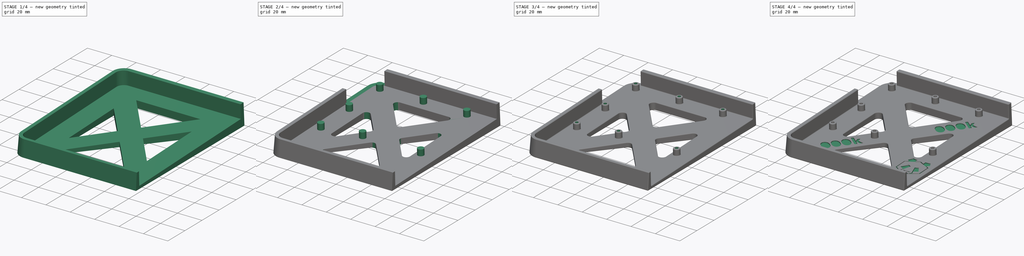
[diagram: build sequence overview — one tinted view per stage of 4, left to right]
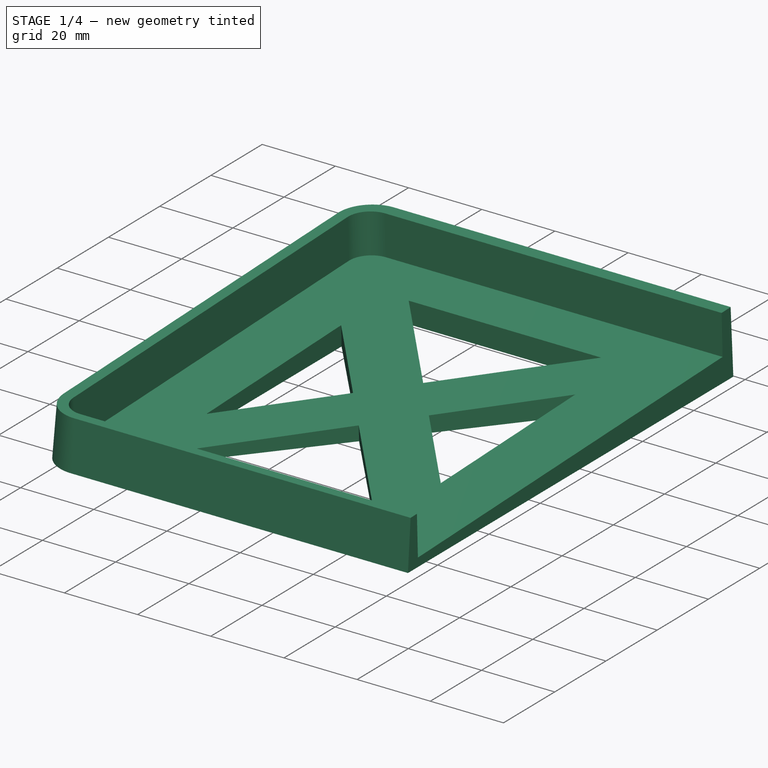
[diagram: stage 1 of 4 — iso view after this stage's code; geometry added in this stage tinted green]
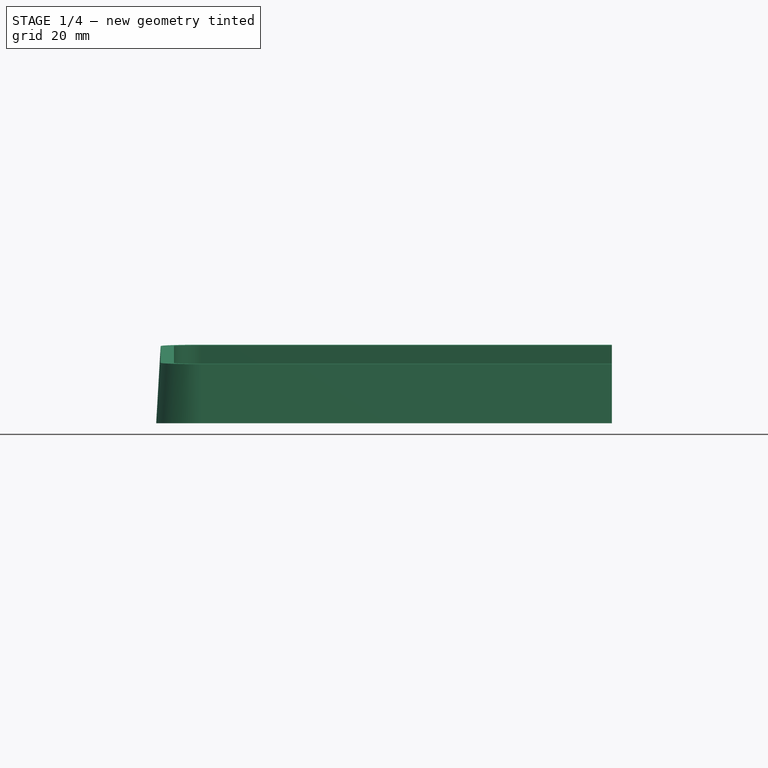
[diagram: stage 1 of 4 — front view after this stage's code; geometry added in this stage tinted green]
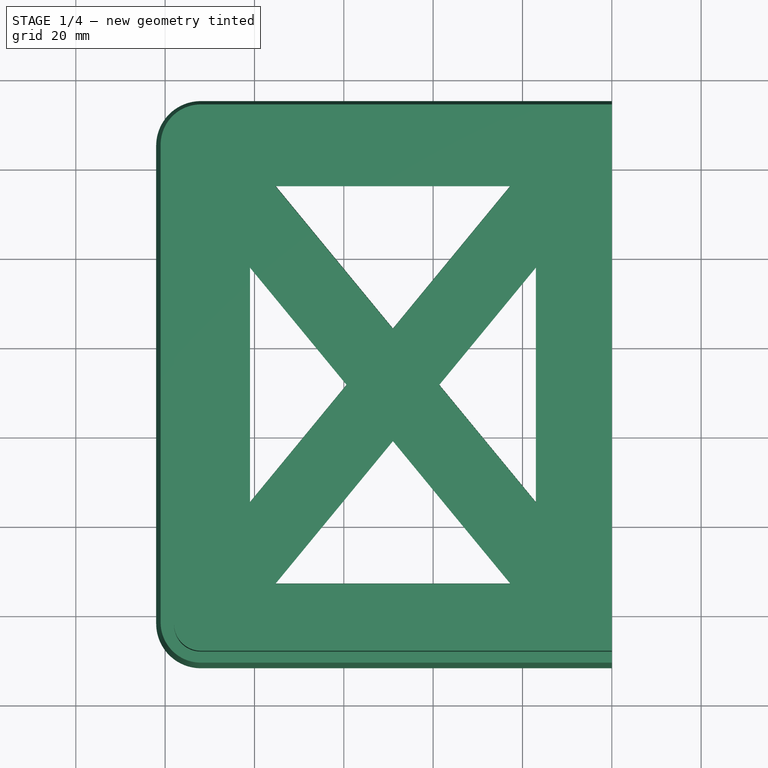
[diagram: stage 1 of 4 — top view after this stage's code; geometry added in this stage tinted green]
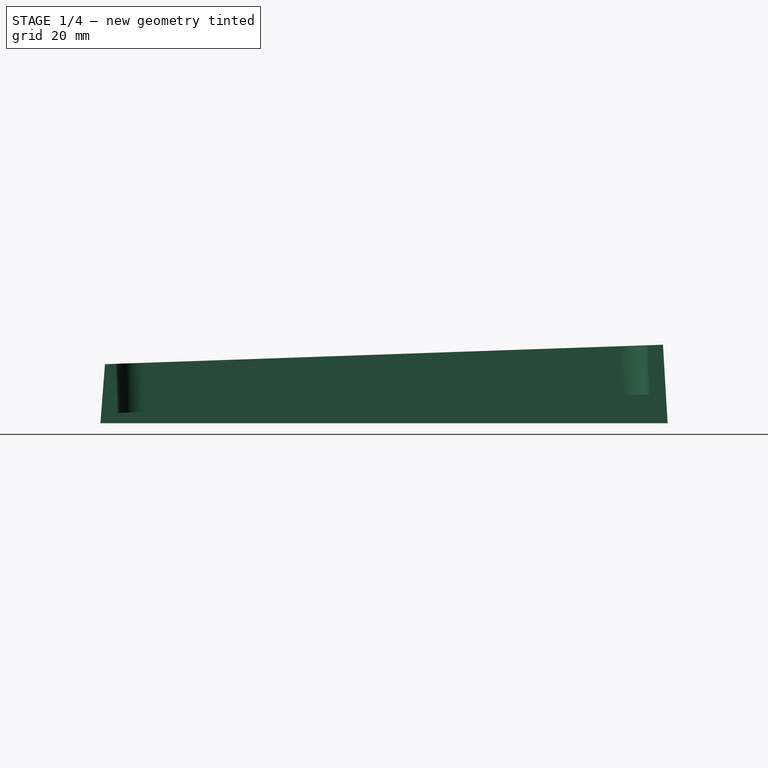
[diagram: stage 1 of 4 — right view after this stage's code; geometry added in this stage tinted green]
FCSTD DOCUMENT  (FreeCAD 0.20R)
Label: case.2.1
License: All rights reserved
LicenseURL: http://en.wikipedia.org/wiki/All_rights_reserved
objects: Sketcher::SketchObject×9, PartDesign::Pocket×5, PartDesign::Fillet×2, PartDesign::AdditiveLoft×1, PartDesign::Pad×1, PartDesign::Hole×1, PartDesign::Chamfer×1, PartDesign::Body×1
note: 32 computed .brp shape members not serialized (recipe doc carries the construction recipe); baked Part::Feature solids carry a one-line shape summary decoded from their .brp

FEATURE [Sketcher::SketchObject] Sketch  label="ext3"
  FullyConstrained = false
  MapMode = 5
  Support = -> [XY_Plane]
  sketch-geometry (6):
    g0: ArcOfCircle CenterX=-92.0124 CenterY=65.4064 CenterZ=0 NormalX=0 NormalY=0 NormalZ=1 AngleXU=0 Radius=10 StartAngle=1.5708 EndAngle=3.14159
    g1: LineSegment StartX=-102.012 StartY=-41.5936 StartZ=0 EndX=-102.012 EndY=65.4064 EndZ=0
    g2: ArcOfCircle CenterX=-92.0124 CenterY=-41.5936 CenterZ=0 NormalX=0 NormalY=0 NormalZ=1 AngleXU=0 Radius=10 StartAngle=3.14159 EndAngle=4.71239
    g3: LineSegment StartX=0 StartY=75.4064 StartZ=0 EndX=0 EndY=-51.5936 EndZ=0
    g4: LineSegment StartX=-92.0124 StartY=75.4064 StartZ=0 EndX=0 EndY=75.4064 EndZ=0
    g5: LineSegment StartX=-92.0124 StartY=-51.5936 StartZ=0 EndX=0 EndY=-51.5936 EndZ=0
  constraints (1):
    c: Coincident(g4,g3)
FEATURE [Sketcher::SketchObject] Sketch001  label="ext2"
  AttachmentOffset = pos=(0,0,15) rot=(1,0,0;0.034907rad)
  FullyConstrained = false
  MapMode = 5
  Placement = pos=(0,0,15) rot=(1,0,0;0.034907rad)
  Support = -> [XY_Plane]
  sketch-geometry (6):
    g0: ArcOfCircle CenterX=-92.0124 CenterY=-41.5936 CenterZ=0 NormalX=0 NormalY=0 NormalZ=1 AngleXU=0 Radius=9 StartAngle=3.14159 EndAngle=4.71239
    g1: LineSegment StartX=-101.012 StartY=-41.5936 StartZ=0 EndX=-101.012 EndY=65.4064 EndZ=0
    g2: ArcOfCircle CenterX=-92.0124 CenterY=65.4064 CenterZ=0 NormalX=0 NormalY=0 NormalZ=1 AngleXU=0 Radius=9 StartAngle=1.5708 EndAngle=3.14159
    g3: LineSegment StartX=-92.0124 StartY=-50.5936 StartZ=0 EndX=0 EndY=-50.5936 EndZ=0
    g4: LineSegment StartX=-92.0124 StartY=74.4064 StartZ=0 EndX=0 EndY=74.4063 EndZ=0
    g5: LineSegment StartX=0 StartY=74.4063 StartZ=0 EndX=0 EndY=-50.5936 EndZ=0
  constraints (1):
    c: Coincident(g5,g4)
FEATURE [PartDesign::AdditiveLoft] AdditiveLoft
  Closed = true
  Profile = -> Sketch
  Ruled = true
  Sections = -> [Sketch001]
FEATURE [Sketcher::SketchObject] Sketch002  label="ext1"
  FullyConstrained = false
  MapMode = 5
  Placement = pos=(0,-0.523174,14.9817) rot=(1,0,0;0.034907rad)
  Support = -> [AdditiveLoft]
  sketch-geometry (6):
    g0: ArcOfCircle CenterX=-92.0124 CenterY=65.4064 CenterZ=0 NormalX=0 NormalY=0 NormalZ=1 AngleXU=0 Radius=6 StartAngle=1.5708 EndAngle=3.14159
    g1: LineSegment StartX=-98.0124 StartY=-41.5936 StartZ=0 EndX=-98.0124 EndY=65.4064 EndZ=0
    g2: ArcOfCircle CenterX=-92.0124 CenterY=-41.5936 CenterZ=0 NormalX=0 NormalY=0 NormalZ=1 AngleXU=0 Radius=6 StartAngle=3.14159 EndAngle=4.71239
    g3: LineSegment StartX=-92.0124 StartY=71.4064 StartZ=0 EndX=0 EndY=71.4064 EndZ=0
    g4: LineSegment StartX=-92.0124 StartY=-47.5936 StartZ=0 EndX=0 EndY=-47.5936 EndZ=0
    g5: LineSegment StartX=0 StartY=71.4064 StartZ=0 EndX=0 EndY=-47.5936 EndZ=0
FEATURE [PartDesign::Pocket] Pocket
  BaseFeature = -> AdditiveLoft
  Direction = (0,0.0348995,-0.999391)
  Length = 11
  Length2 = 5
  Profile = -> Sketch002
  ReferenceAxis = -> Sketch002 [N_Axis]
  Type = 0
FEATURE [Sketcher::SketchObject] Sketch004
  ExternalGeometry = -> [Pocket]
  FullyConstrained = true
  MapMode = 5
  Placement = pos=(0,-0.139279,3.98843) rot=(1,0,0;0.034907rad)
  Support = -> [Pocket]
  sketch-geometry (17):
    g0: GeomPoint X=-98.0124 Y=71.4064 Z=0
    g1: GeomPoint X=-98.0124 Y=-47.5936 Z=0
    g2: LineSegment StartX=-98.0124 StartY=-47.5936 StartZ=0 EndX=1.42e-14 EndY=71.4064 EndZ=0
    g3: LineSegment StartX=-98.0124 StartY=71.4064 StartZ=0 EndX=1.42e-14 EndY=-47.5936 EndZ=0
    g4: LineSegment StartX=-75.2938 StartY=56.4063 StartZ=0 EndX=-49.0062 EndY=24.4898 EndZ=0
    g5: LineSegment StartX=-49.0062 StartY=24.4898 StartZ=0 EndX=-22.7187 EndY=56.4064 EndZ=0
    g6: LineSegment StartX=-22.7187 StartY=56.4064 StartZ=0 EndX=-75.2938 EndY=56.4063 EndZ=0
    g7: LineSegment StartX=-22.7187 StartY=-32.5936 StartZ=0 EndX=-49.0062 EndY=-0.677106 EndZ=0
    g8: LineSegment StartX=-49.0062 StartY=-0.677106 StartZ=0 EndX=-75.2938 EndY=-32.5936 EndZ=0
    g9: LineSegment StartX=-75.2938 StartY=-32.5936 StartZ=0 EndX=-22.7187 EndY=-32.5936 EndZ=0
    g10: GeomPoint X=-49.0062 Y=11.9063 Z=0
    g11: LineSegment StartX=-81.0124 StartY=38.1827 StartZ=0 EndX=-59.3704 EndY=11.9063 EndZ=0
    g12: LineSegment StartX=-59.3704 StartY=11.9063 StartZ=0 EndX=-81.0124 EndY=-14.37 EndZ=0
    g13: LineSegment StartX=-81.0124 StartY=-14.37 StartZ=0 EndX=-81.0124 EndY=38.1827 EndZ=0
    g14: LineSegment StartX=-38.6421 StartY=11.9063 StartZ=0 EndX=-17 EndY=-14.37 EndZ=0
    g15: LineSegment StartX=-17 StartY=-14.37 StartZ=0 EndX=-17 EndY=38.1827 EndZ=0
    g16: LineSegment StartX=-17 StartY=38.1827 StartZ=0 EndX=-38.6421 EndY=11.9063 EndZ=0
  constraints (40):
    c: Coincident(g2,g1)
    c: Coincident(g3,g0)
    c: Parallel(g4,g3)
    c: Parallel(g5,g2)
    c: Distance(g5,g2) = 8
    c: Distance(g4,g3) = 8
    c: Coincident(g6,g4)
    c: Coincident(g4,g5)
    c: Coincident(g6,g5)
    c: Coincident(g7,g8)
    c: Coincident(g8,g9)
    c: Coincident(g9,g7)
    c: PointOnObject(g10,g2)
    c: PointOnObject(g10,g3)
    c: Symmetric(g4,g7,g10)
    c: Symmetric(g8,g5,g10)
    c: Symmetric(g7,g4,g10)
    c: Coincident(g11,g12)
    c: Coincident(g12,g13)
    c: Coincident(g13,g11)
    c: Distance(g11,g3) = 8
    c: Horizontal(g10,g11)
    c: Coincident(g2,g-3)
    c: Vertical(g0,g-5)
    c: Horizontal(g0,g-3)
    c: Horizontal(g1,g-4)
    c: Vertical(g1,g-5)
    c: Coincident(g3,g-4)
    c: Distance(g7,g-4) = 15
    c: Distance(g11,g-5) = 17
    c: Distance(g12,g2) = 8
    c: Coincident(g14,g15)
    c: Coincident(g15,g16)
    c: Coincident(g16,g14)
    c: Symmetric(g11,g14,g10)
    c: Symmetric(g14,g11,g10)
    c: Symmetric(g15,g12,g10)
    c: Vertical(g13)
    c: Horizontal(g9)
    c: Parallel(g11,g3)
FEATURE [PartDesign::Pocket] Pocket001
  BaseFeature = -> Pocket
  Direction = (0,0.0348995,-0.999391)
  Length = 5
  Length2 = 5
  Profile = -> Sketch004
  ReferenceAxis = -> Sketch004 [N_Axis]
  Type = 1
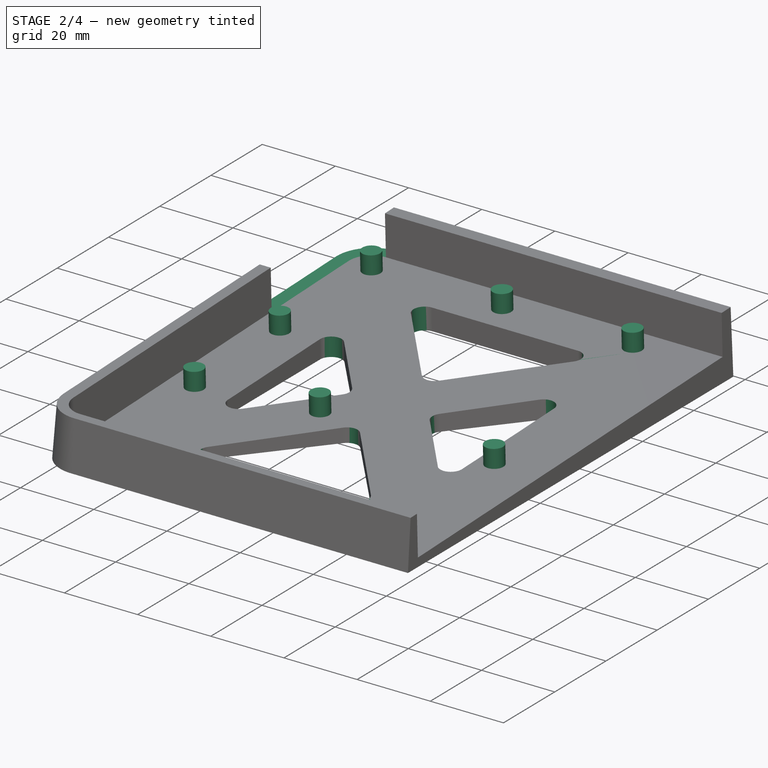
[diagram: stage 2 of 4 — iso view after this stage's code; geometry added in this stage tinted green]
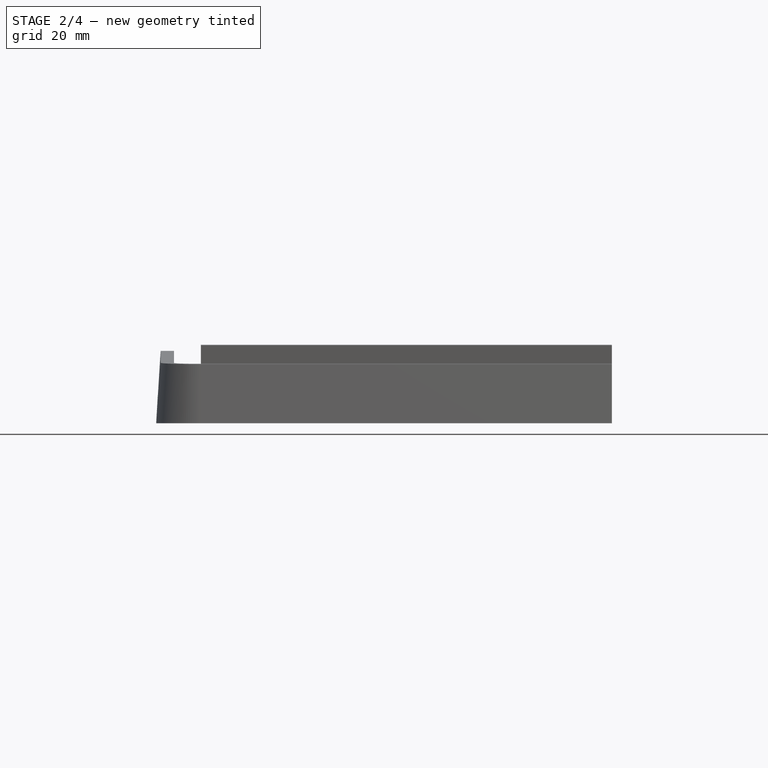
[diagram: stage 2 of 4 — front view after this stage's code; geometry added in this stage tinted green]
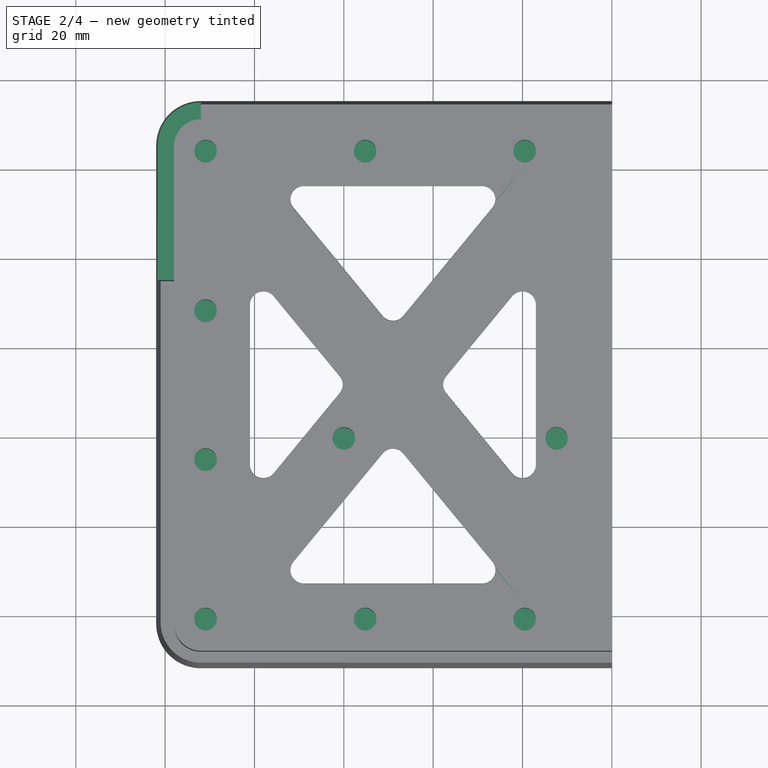
[diagram: stage 2 of 4 — top view after this stage's code; geometry added in this stage tinted green]
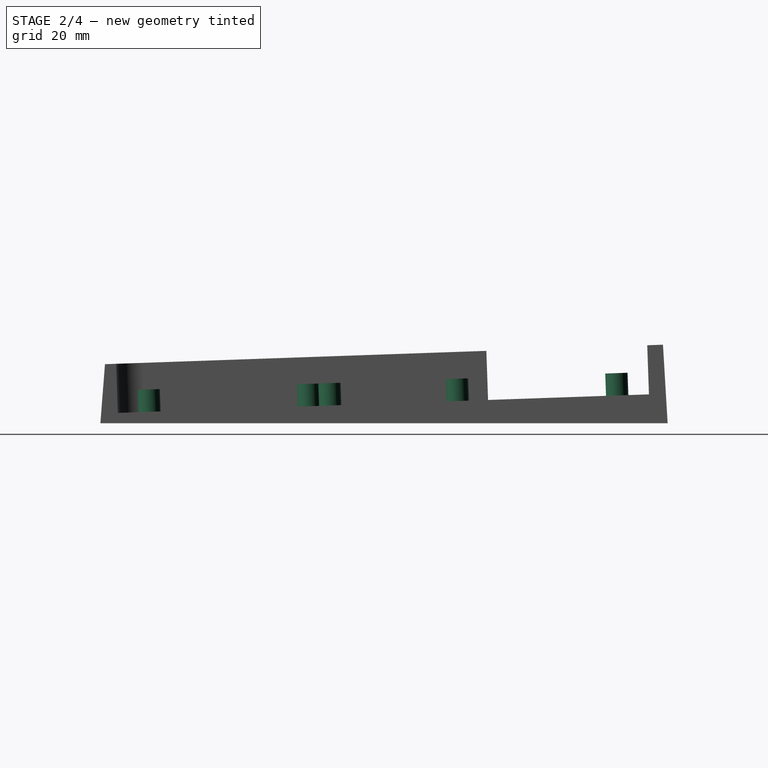
[diagram: stage 2 of 4 — right view after this stage's code; geometry added in this stage tinted green]
FEATURE [PartDesign::Fillet] Fillet
  Base = -> Pocket001 [Edge43,Edge42,Edge55,Edge57,Edge54,Edge45,Edge51,Edge48,Edge37,Edge36,Edge49,Edge39]
  BaseFeature = -> Pocket001
  Radius = 3
  SupportTransform = false
  UseAllEdges = false
FEATURE [Sketcher::SketchObject] Sketch005
  ExternalGeometry = -> [Fillet]
  FullyConstrained = true
  MapMode = 5
  Placement = pos=(0,-0.523174,14.9817) rot=(1,0,0;0.034907rad)
  Support = -> [Fillet]
  sketch-geometry (4):
    g0: LineSegment StartX=-92.0125 StartY=75.3604 StartZ=0 EndX=-102.012 EndY=75.3604 EndZ=0
    g1: LineSegment StartX=-102.012 StartY=75.3604 StartZ=0 EndX=-102.012 EndY=35.3665 EndZ=0
    g2: LineSegment StartX=-102.012 StartY=35.3665 StartZ=0 EndX=-92.0125 EndY=35.3665 EndZ=0
    g3: LineSegment StartX=-92.0125 StartY=35.3665 StartZ=0 EndX=-92.0125 EndY=75.3604 EndZ=0
  constraints (11):
    c: Coincident(g0,g1)
    c: Coincident(g1,g2)
    c: Coincident(g2,g3)
    c: Coincident(g3,g0)
    c: Horizontal(g0)
    c: Horizontal(g2)
    c: Vertical(g1)
    c: Vertical(g3)
    c: Coincident(g0,g-3)
    c: PointOnObject(g1,g-4)
    c: DistanceY(g1,g-4) = 30
FEATURE [PartDesign::Pocket] Pocket002
  BaseFeature = -> Fillet
  Direction = (0,0.0348995,-0.999391)
  Length = 0
  Length2 = 5
  Profile = -> Sketch005
  ReferenceAxis = -> Sketch005 [N_Axis]
  Type = 3
  UpToFace = -> Fillet [Face32]
FEATURE [Sketcher::SketchObject] Sketch003  label="support"
  FullyConstrained = false
  MapMode = 5
  Placement = pos=(0,-0.139279,3.98843) rot=(1,0,0;0.034907rad)
  Support = -> [Pocket002]
  sketch-geometry (10):
    g0: Circle CenterX=-90.9563 CenterY=64.2939 CenterZ=0 NormalX=0 NormalY=0 NormalZ=-1 AngleXU=0 Radius=2.5
    g1: Circle CenterX=-55.2375 CenterY=64.2939 CenterZ=0 NormalX=0 NormalY=0 NormalZ=-1 AngleXU=0 Radius=2.5
    g2: Circle CenterX=-19.5187 CenterY=64.2939 CenterZ=0 NormalX=0 NormalY=0 NormalZ=-1 AngleXU=0 Radius=2.5
    g3: Circle CenterX=-12.375 CenterY=0 CenterZ=0 NormalX=0 NormalY=0 NormalZ=-1 AngleXU=0 Radius=2.5
    g4: Circle CenterX=-19.5187 CenterY=-40.4812 CenterZ=0 NormalX=0 NormalY=0 NormalZ=-1 AngleXU=0 Radius=2.5
    g5: Circle CenterX=-55.2375 CenterY=-40.4812 CenterZ=0 NormalX=0 NormalY=0 NormalZ=-1 AngleXU=0 Radius=2.5
    g6: Circle CenterX=-90.9563 CenterY=-40.4812 CenterZ=0 NormalX=0 NormalY=0 NormalZ=-1 AngleXU=0 Radius=2.5
    g7: Circle CenterX=-90.9563 CenterY=-4.7624 CenterZ=0 NormalX=0 NormalY=0 NormalZ=-1 AngleXU=0 Radius=2.5
    g8: Circle CenterX=-90.9563 CenterY=28.5751 CenterZ=0 NormalX=0 NormalY=0 NormalZ=-1 AngleXU=0 Radius=2.5
    g9: Circle CenterX=-60 CenterY=0 CenterZ=0 NormalX=0 NormalY=0 NormalZ=-1 AngleXU=0 Radius=2.5
FEATURE [PartDesign::Pad] Pad
  BaseFeature = -> Pocket002
  Direction = (0,-0.0348995,0.999391)
  Length = 5
  Length2 = 10
  Profile = -> Sketch003
  ReferenceAxis = -> Sketch003 [N_Axis]
  Type = 0
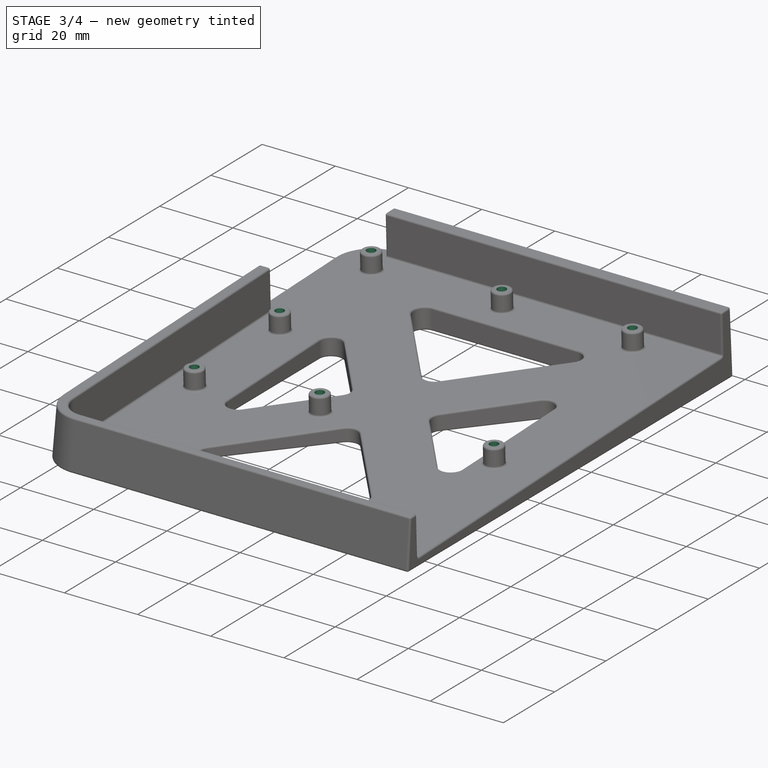
[diagram: stage 3 of 4 — iso view after this stage's code; geometry added in this stage tinted green]
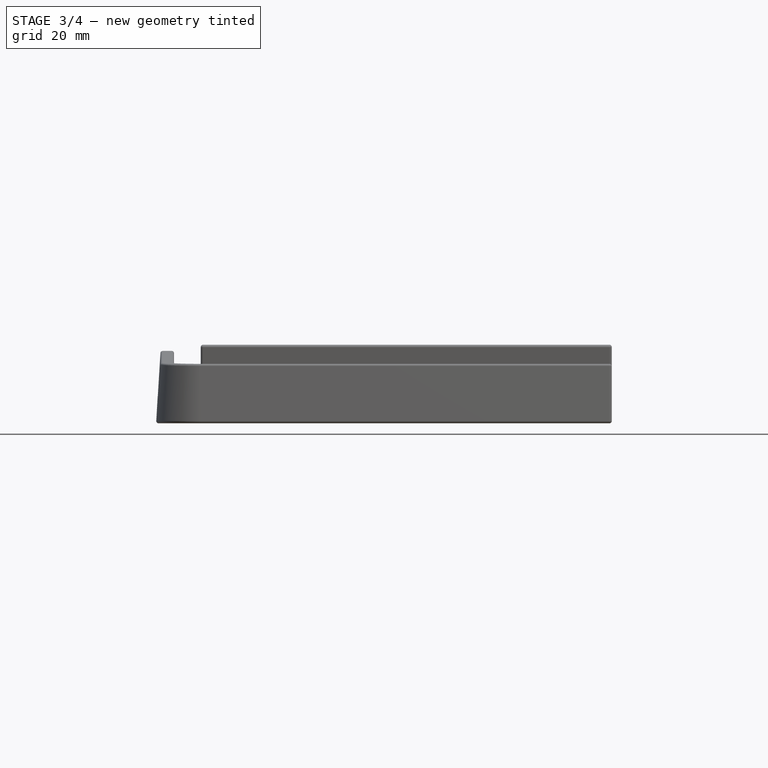
[diagram: stage 3 of 4 — front view after this stage's code; geometry added in this stage tinted green]
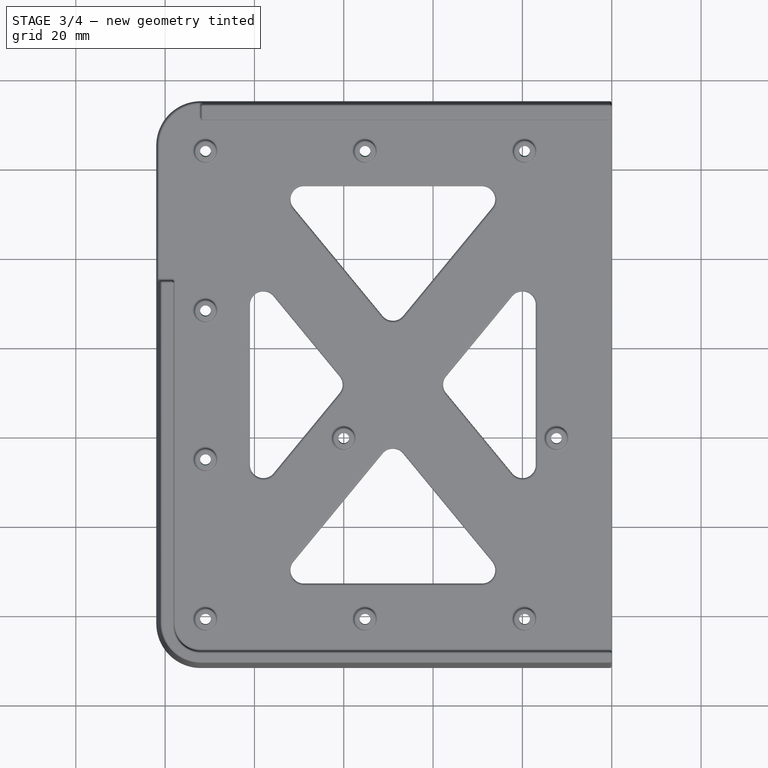
[diagram: stage 3 of 4 — top view after this stage's code; geometry added in this stage tinted green]
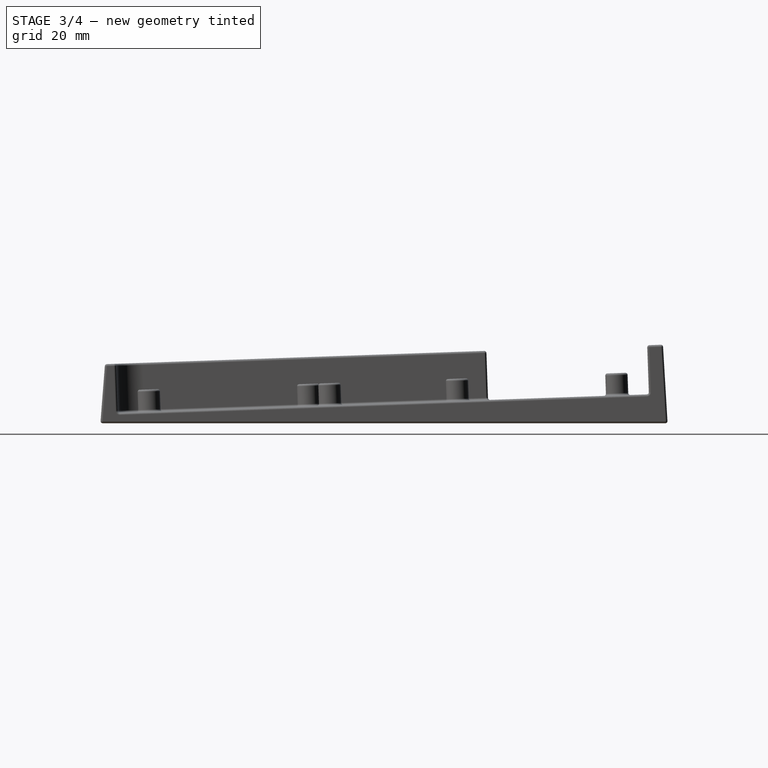
[diagram: stage 3 of 4 — right view after this stage's code; geometry added in this stage tinted green]
FEATURE [PartDesign::Fillet] Fillet001
  Base = -> Pad [Edge1,Edge2,Edge3,Edge4,Edge5,Edge6,Edge7,Edge8,Edge9,Edge10,Edge11,Edge12,Edge13,Edge14,Edge15,Edge16,Edge17,Edge18,Edge19,Edge20,Edge21,Edge22,Edge23,Edge24,Edge25,Edge26,Edge27,Edge28,Edge29,Edge30,Edge31,Edge32,Edge33,Edge34,Edge35,Edge36,Edge37,Edge38,Edge39,Edge40,+110 more]
  BaseFeature = -> Pad
  Radius = 0.5
  SupportTransform = false
  UseAllEdges = true
FEATURE [Sketcher::SketchObject] Sketch006
  ExternalGeometry = -> [Fillet001]
  FullyConstrained = true
  MapMode = 5
  Placement = pos=(2e-16,-0.313777,8.98539) rot=(1,0,0;0.034907rad)
  Support = -> [Fillet001]
  sketch-geometry (20):
    g0: GeomPoint X=-90.9563 Y=64.2939 Z=0
    g1: GeomPoint X=-55.2375 Y=64.2939 Z=0
    g2: GeomPoint X=-19.5187 Y=64.2939 Z=0
    g3: GeomPoint X=-12.375 Y=-4e-16 Z=0
    g4: GeomPoint X=-60 Y=-4e-16 Z=0
    g5: GeomPoint X=-90.9563 Y=28.5751 Z=0
    g6: GeomPoint X=-90.9563 Y=-4.7624 Z=0
    g7: GeomPoint X=-90.9563 Y=-40.4812 Z=0
    g8: GeomPoint X=-55.2375 Y=-40.4812 Z=0
    g9: GeomPoint X=-19.5187 Y=-40.4812 Z=0
    g10: Circle CenterX=-90.9563 CenterY=64.2939 CenterZ=0 NormalX=0 NormalY=0 NormalZ=1 AngleXU=0 Radius=1
    g11: Circle CenterX=-55.2375 CenterY=64.2939 CenterZ=0 NormalX=0 NormalY=0 NormalZ=1 AngleXU=0 Radius=1
    g12: Circle CenterX=-19.5187 CenterY=64.2939 CenterZ=0 NormalX=0 NormalY=0 NormalZ=1 AngleXU=0 Radius=1
    g13: Circle CenterX=-12.375 CenterY=-4e-16 CenterZ=0 NormalX=0 NormalY=0 NormalZ=1 AngleXU=0 Radius=1
    g14: Circle CenterX=-60 CenterY=-4e-16 CenterZ=0 NormalX=0 NormalY=0 NormalZ=1 AngleXU=0 Radius=1
    g15: Circle CenterX=-90.9563 CenterY=-4.7624 CenterZ=0 NormalX=0 NormalY=0 NormalZ=1 AngleXU=0 Radius=1
    g16: Circle CenterX=-90.9563 CenterY=28.5751 CenterZ=0 NormalX=0 NormalY=0 NormalZ=1 AngleXU=0 Radius=1
    g17: Circle CenterX=-90.9563 CenterY=-40.4812 CenterZ=0 NormalX=0 NormalY=0 NormalZ=1 AngleXU=0 Radius=1
    g18: Circle CenterX=-55.2375 CenterY=-40.4812 CenterZ=0 NormalX=0 NormalY=0 NormalZ=1 AngleXU=0 Radius=1
    g19: Circle CenterX=-19.5187 CenterY=-40.4812 CenterZ=0 NormalX=0 NormalY=0 NormalZ=1 AngleXU=0 Radius=1
  constraints (30):
    c: Coincident(g0,g-11)
    c: Coincident(g1,g-12)
    c: Coincident(g2,g-3)
    c: Coincident(g3,g-4)
    c: Coincident(g4,g-9)
    c: Coincident(g5,g-10)
    c: Coincident(g6,g-8)
    c: Coincident(g7,g-7)
    c: Coincident(g8,g-6)
    c: Coincident(g9,g-5)
    c: Coincident(g10,g0)
    c: Coincident(g11,g1)
    c: Coincident(g12,g2)
    c: Coincident(g13,g3)
    c: Coincident(g14,g4)
    c: Coincident(g15,g6)
    c: Coincident(g16,g5)
    c: Coincident(g17,g7)
    c: Coincident(g18,g8)
    c: Coincident(g19,g9)
    c: Equal(g19,g18)
    c: Equal(g18,g17)
    c: Equal(g17,g15)
    c: Equal(g15,g14)
    c: Equal(g14,g13)
    c: Equal(g13,g16)
    c: Equal(g16,g10)
    c: Equal(g10,g11)
    c: Equal(g11,g12)
    c: Diameter(g10) = 2
FEATURE [PartDesign::Hole] Hole
  BaseFeature = -> Fillet001
  CustomThreadClearance = 0
  Depth = 330.174
  DepthType = 1
  Diameter = 2.42
  DrillForDepth = false
  DrillPoint = 1
  DrillPointAngle = 118
  HoleCutCountersinkAngle = 90
  HoleCutCustomValues = false
  HoleCutDepth = 0
  HoleCutDiameter = 6.1
  HoleCutType = 0
  ModelThread = false
  Profile = -> Sketch006
  Tapered = false
  TaperedAngle = 90
  ThreadClass = 0
  ThreadDepth = 330.174
  ThreadDepthType = 0
  ThreadDirection = 0
  ThreadFit = 0
  ThreadSize = 7
  ThreadType = 1
  Threaded = false
  UseCustomThreadClearance = false
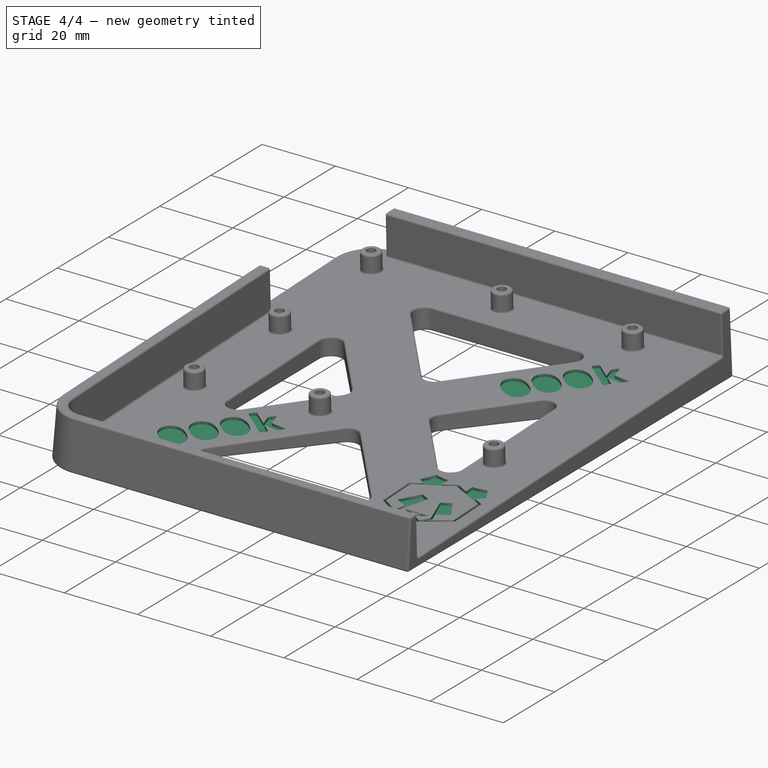
[diagram: stage 4 of 4 — iso view after this stage's code; geometry added in this stage tinted green]
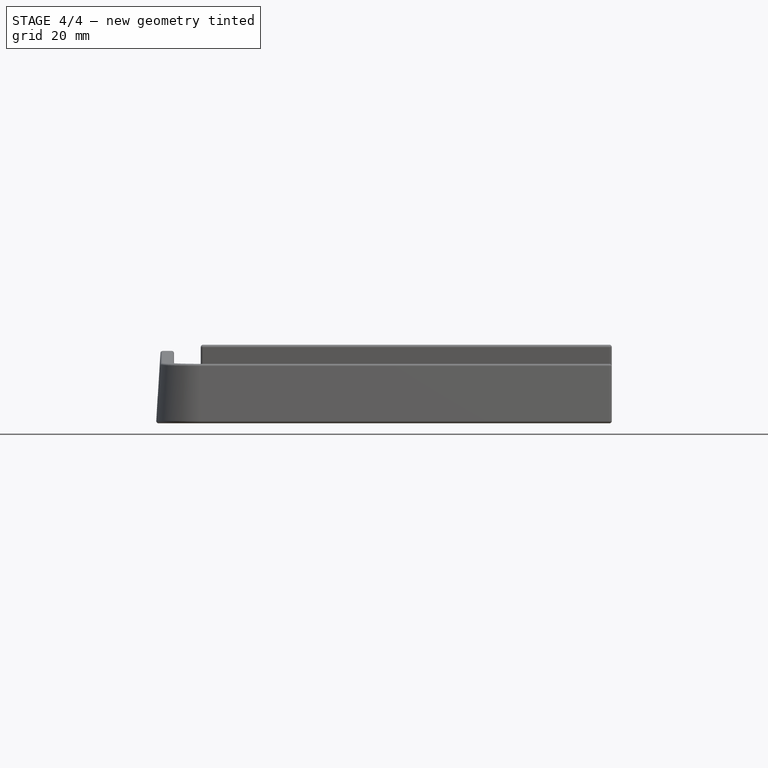
[diagram: stage 4 of 4 — front view after this stage's code; geometry added in this stage tinted green]
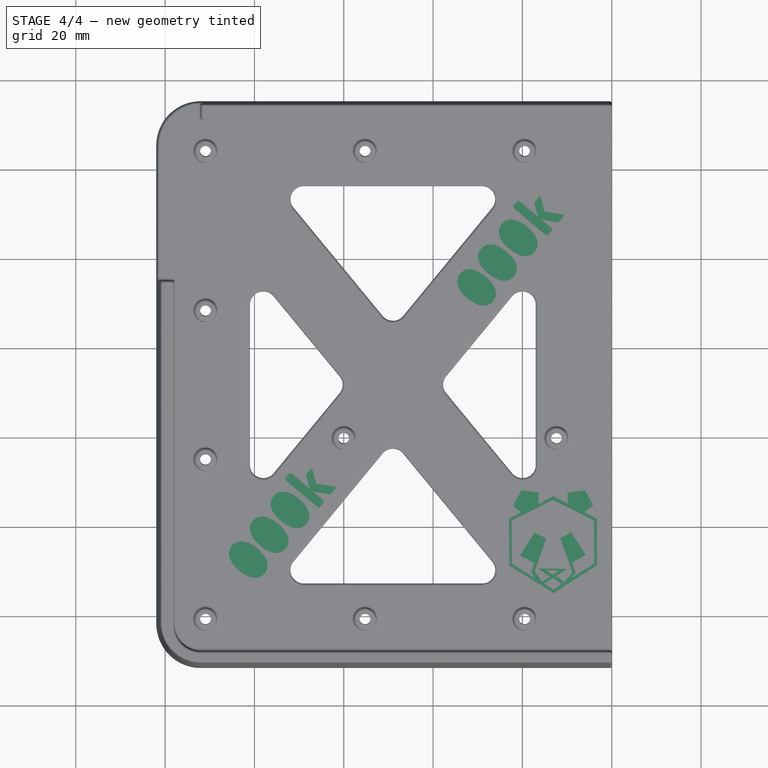
[diagram: stage 4 of 4 — top view after this stage's code; geometry added in this stage tinted green]
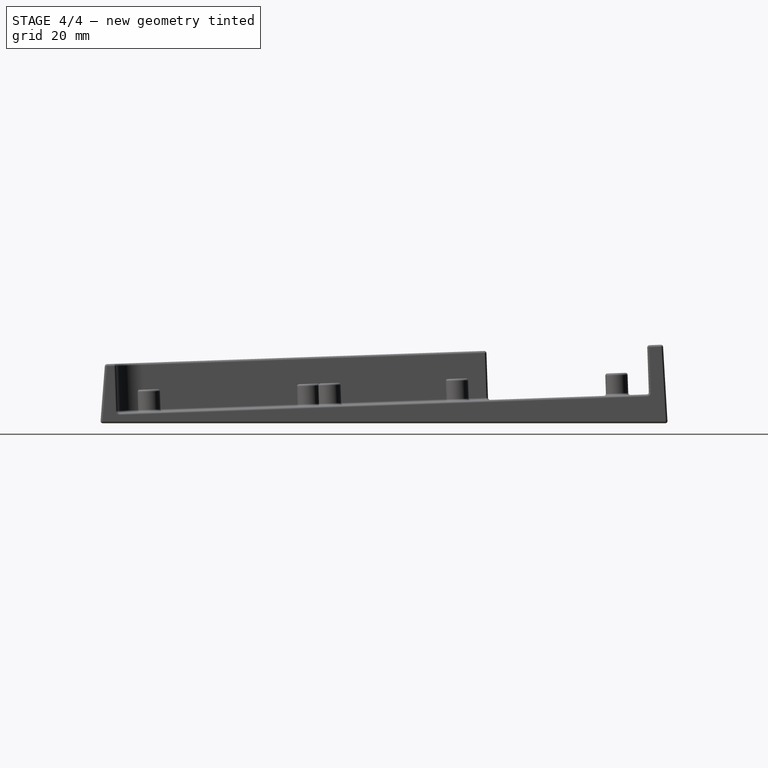
[diagram: stage 4 of 4 — right view after this stage's code; geometry added in this stage tinted green]
FEATURE [PartDesign::Chamfer] Chamfer
  Angle = 45
  Base = -> Hole [Edge8,Edge17,Edge18,Edge7,Edge10,Edge40,Edge27,Edge26,Edge19,Edge9]
  BaseFeature = -> Hole
  ChamferType = 0
  FlipDirection = false
  Size = 1.5
  Size2 = 1
  SupportTransform = false
  UseAllEdges = false
FEATURE [Sketcher::SketchObject] Sketch007
  AttachmentOffset = pos=(-80,-33,0) rot=(0,0,1;0.872665rad)
  FullyConstrained = false
  MapMode = 5
  Placement = pos=(-80,-33.1192,2.83675) rot=(0.037401,-0.01744,0.999148;0.873318rad)
  Support = -> [Chamfer]
  sketch-geometry (140):
    g0: BSplineCurve PolesCount=3 KnotsCount=2 Degree=2 IsPeriodic=0
    g1: BSplineCurve PolesCount=3 KnotsCount=2 Degree=2 IsPeriodic=0
    g2: BSplineCurve PolesCount=3 KnotsCount=2 Degree=2 IsPeriodic=0
    g3: BSplineCurve PolesCount=3 KnotsCount=2 Degree=2 IsPeriodic=0
    g4: BSplineCurve PolesCount=3 KnotsCount=2 Degree=2 IsPeriodic=0
    g5: BSplineCurve PolesCount=3 KnotsCount=2 Degree=2 IsPeriodic=0
    g6: BSplineCurve PolesCount=3 KnotsCount=2 Degree=2 IsPeriodic=0
    g7: BSplineCurve PolesCount=3 KnotsCount=2 Degree=2 IsPeriodic=0
    g8: BSplineCurve PolesCount=3 KnotsCount=2 Degree=2 IsPeriodic=0
    g9: BSplineCurve PolesCount=3 KnotsCount=2 Degree=2 IsPeriodic=0
    g10: BSplineCurve PolesCount=3 KnotsCount=2 Degree=2 IsPeriodic=0
    g11: BSplineCurve PolesCount=3 KnotsCount=2 Degree=2 IsPeriodic=0
    g12: BSplineCurve PolesCount=3 KnotsCount=2 Degree=2 IsPeriodic=0
    g13: BSplineCurve PolesCount=3 KnotsCount=2 Degree=2 IsPeriodic=0
    g14: BSplineCurve PolesCount=3 KnotsCount=2 Degree=2 IsPeriodic=0
    g15: BSplineCurve PolesCount=3 KnotsCount=2 Degree=2 IsPeriodic=0
    g16: BSplineCurve PolesCount=3 KnotsCount=2 Degree=2 IsPeriodic=0
    g17: BSplineCurve PolesCount=3 KnotsCount=2 Degree=2 IsPeriodic=0
    g18: BSplineCurve PolesCount=3 KnotsCount=2 Degree=2 IsPeriodic=0
    g19: BSplineCurve PolesCount=3 KnotsCount=2 Degree=2 IsPeriodic=0
    g20: BSplineCurve PolesCount=3 KnotsCount=2 Degree=2 IsPeriodic=0
    g21: BSplineCurve PolesCount=3 KnotsCount=2 Degree=2 IsPeriodic=0
    g22: BSplineCurve PolesCount=3 KnotsCount=2 Degree=2 IsPeriodic=0
    g23: BSplineCurve PolesCount=3 KnotsCount=2 Degree=2 IsPeriodic=0
    g24: BSplineCurve PolesCount=3 KnotsCount=2 Degree=2 IsPeriodic=0
    g25: BSplineCurve PolesCount=3 KnotsCount=2 Degree=2 IsPeriodic=0
    g26: BSplineCurve PolesCount=3 KnotsCount=2 Degree=2 IsPeriodic=0
    g27: BSplineCurve PolesCount=3 KnotsCount=2 Degree=2 IsPeriodic=0
    g28: BSplineCurve PolesCount=3 KnotsCount=2 Degree=2 IsPeriodic=0
    g29: BSplineCurve PolesCount=3 KnotsCount=2 Degree=2 IsPeriodic=0
    g30: BSplineCurve PolesCount=3 KnotsCount=2 Degree=2 IsPeriodic=0
    g31: BSplineCurve PolesCount=3 KnotsCount=2 Degree=2 IsPeriodic=0
    g32: BSplineCurve PolesCount=3 KnotsCount=2 Degree=2 IsPeriodic=0
    g33: BSplineCurve PolesCount=3 KnotsCount=2 Degree=2 IsPeriodic=0
    g34: BSplineCurve PolesCount=3 KnotsCount=2 Degree=2 IsPeriodic=0
    g35: BSplineCurve PolesCount=3 KnotsCount=2 Degree=2 IsPeriodic=0
    g36: LineSegment StartX=26.3858 StartY=4.0397 StartZ=0 EndX=28.4164 EndY=0.651435 EndZ=0
    g37: LineSegment StartX=28.1066 StartY=6.49349 StartZ=0 EndX=26.3858 EndY=4.0397 EndZ=0
    g38: BSplineCurve PolesCount=3 KnotsCount=2 Degree=2 IsPeriodic=0
    g39: BSplineCurve PolesCount=3 KnotsCount=2 Degree=2 IsPeriodic=0
    g40: BSplineCurve PolesCount=3 KnotsCount=2 Degree=2 IsPeriodic=0
    g41: BSplineCurve PolesCount=3 KnotsCount=2 Degree=2 IsPeriodic=0
    g42: LineSegment StartX=27.1686 StartY=7.13922 StartZ=0 EndX=27.5962 EndY=7.13922 EndZ=0
    g43: BSplineCurve PolesCount=3 KnotsCount=2 Degree=2 IsPeriodic=0
    g44: BSplineCurve PolesCount=3 KnotsCount=2 Degree=2 IsPeriodic=0
    g45: BSplineCurve PolesCount=3 KnotsCount=2 Degree=2 IsPeriodic=0
    g46: LineSegment StartX=24.6337 StartY=4.46906 StartZ=0 EndX=26.1913 EndY=6.82945 EndZ=0
    g47: LineSegment StartX=24.5682 StartY=4.46906 StartZ=0 EndX=24.6337 EndY=4.46906 EndZ=0
    g48: LineSegment StartX=24.5682 StartY=9.76575 StartZ=0 EndX=24.5682 EndY=4.46906 EndZ=0
    g49: BSplineCurve PolesCount=3 KnotsCount=2 Degree=2 IsPeriodic=0
    g50: BSplineCurve PolesCount=3 KnotsCount=2 Degree=2 IsPeriodic=0
    g51: LineSegment StartX=23.3771 StartY=10.2064 StartZ=0 EndX=23.7524 EndY=10.2064 EndZ=0
    g52: BSplineCurve PolesCount=3 KnotsCount=2 Degree=2 IsPeriodic=0
    g53: BSplineCurve PolesCount=3 KnotsCount=2 Degree=2 IsPeriodic=0
    g54: LineSegment StartX=22.5569 StartY=0.516182 StartZ=0 EndX=22.5569 EndY=9.76575 EndZ=0
    g55: BSplineCurve PolesCount=3 KnotsCount=2 Degree=2 IsPeriodic=0
    g56: BSplineCurve PolesCount=3 KnotsCount=2 Degree=2 IsPeriodic=0
    g57: LineSegment StartX=23.7524 StartY=0.075519 StartZ=0 EndX=23.3771 EndY=0.075519 EndZ=0
    g58: BSplineCurve PolesCount=3 KnotsCount=2 Degree=2 IsPeriodic=0
    g59: BSplineCurve PolesCount=3 KnotsCount=2 Degree=2 IsPeriodic=0
    g60: LineSegment StartX=24.5682 StartY=3.40013 StartZ=0 EndX=24.5682 EndY=0.516182 EndZ=0
    g61: LineSegment StartX=24.6337 StartY=3.40013 StartZ=0 EndX=24.5682 EndY=3.40013 EndZ=0
    g62: LineSegment StartX=26.296 StartY=0.503093 StartZ=0 EndX=24.6337 EndY=3.40013 EndZ=0
    g63: BSplineCurve PolesCount=3 KnotsCount=2 Degree=2 IsPeriodic=0
    g64: BSplineCurve PolesCount=3 KnotsCount=2 Degree=2 IsPeriodic=0
    g65: LineSegment StartX=27.823 StartY=0.075519 StartZ=0 EndX=27.3955 EndY=0.075519 EndZ=0
    g66: BSplineCurve PolesCount=3 KnotsCount=2 Degree=2 IsPeriodic=0
    g67: BSplineCurve PolesCount=3 KnotsCount=2 Degree=2 IsPeriodic=0
    g68: BSplineCurve PolesCount=3 KnotsCount=2 Degree=2 IsPeriodic=0
    g69: BSplineCurve PolesCount=3 KnotsCount=2 Degree=2 IsPeriodic=0
    g70: BSplineCurve PolesCount=3 KnotsCount=2 Degree=2 IsPeriodic=0
    g71: BSplineCurve PolesCount=3 KnotsCount=2 Degree=2 IsPeriodic=0
    g72: BSplineCurve PolesCount=3 KnotsCount=2 Degree=2 IsPeriodic=0
    g73: BSplineCurve PolesCount=3 KnotsCount=2 Degree=2 IsPeriodic=0
    g74: BSplineCurve PolesCount=3 KnotsCount=2 Degree=2 IsPeriodic=0
    g75: BSplineCurve PolesCount=3 KnotsCount=2 Degree=2 IsPeriodic=0
    g76: BSplineCurve PolesCount=3 KnotsCount=2 Degree=2 IsPeriodic=0
    g77: BSplineCurve PolesCount=3 KnotsCount=2 Degree=2 IsPeriodic=0
    g78: BSplineCurve PolesCount=3 KnotsCount=2 Degree=2 IsPeriodic=0
    g79: BSplineCurve PolesCount=3 KnotsCount=2 Degree=2 IsPeriodic=0
    g80: BSplineCurve PolesCount=3 KnotsCount=2 Degree=2 IsPeriodic=0
    g81: BSplineCurve PolesCount=3 KnotsCount=2 Degree=2 IsPeriodic=0
    g82: BSplineCurve PolesCount=3 KnotsCount=2 Degree=2 IsPeriodic=0
    g83: BSplineCurve PolesCount=3 KnotsCount=2 Degree=2 IsPeriodic=0
    g84: BSplineCurve PolesCount=3 KnotsCount=2 Degree=2 IsPeriodic=0
    g85: BSplineCurve PolesCount=3 KnotsCount=2 Degree=2 IsPeriodic=0
    g86: BSplineCurve PolesCount=3 KnotsCount=2 Degree=2 IsPeriodic=0
    g87: BSplineCurve PolesCount=3 KnotsCount=2 Degree=2 IsPeriodic=0
    g88: BSplineCurve PolesCount=3 KnotsCount=2 Degree=2 IsPeriodic=0
    g89: BSplineCurve PolesCount=3 KnotsCount=2 Degree=2 IsPeriodic=0
    g90: BSplineCurve PolesCount=3 KnotsCount=2 Degree=2 IsPeriodic=0
    g91: BSplineCurve PolesCount=3 KnotsCount=2 Degree=2 IsPeriodic=0
    g92: BSplineCurve PolesCount=3 KnotsCount=2 Degree=2 IsPeriodic=0
    g93: BSplineCurve PolesCount=3 KnotsCount=2 Degree=2 IsPeriodic=0
    g94: BSplineCurve PolesCount=3 KnotsCount=2 Degree=2 IsPeriodic=0
    g95: BSplineCurve PolesCount=3 KnotsCount=2 Degree=2 IsPeriodic=0
    g96: BSplineCurve PolesCount=3 KnotsCount=2 Degree=2 IsPeriodic=0
    g97: BSplineCurve PolesCount=3 KnotsCount=2 Degree=2 IsPeriodic=0
    g98: BSplineCurve PolesCount=3 KnotsCount=2 Degree=2 IsPeriodic=0
    g99: BSplineCurve PolesCount=3 KnotsCount=2 Degree=2 IsPeriodic=0
    g100: BSplineCurve PolesCount=3 KnotsCount=2 Degree=2 IsPeriodic=0
    g101: BSplineCurve PolesCount=3 KnotsCount=2 Degree=2 IsPeriodic=0
    g102: BSplineCurve PolesCount=3 KnotsCount=2 Degree=2 IsPeriodic=0
    g103: BSplineCurve PolesCount=3 KnotsCount=2 Degree=2 IsPeriodic=0
    g104: BSplineCurve PolesCount=3 KnotsCount=2 Degree=2 IsPeriodic=0
    g105: BSplineCurve PolesCount=3 KnotsCount=2 Degree=2 IsPeriodic=0
    g106: LineSegment StartX=105.909 StartY=4.05581 StartZ=0 EndX=107.94 EndY=0.667546 EndZ=0
    g107: LineSegment StartX=107.63 StartY=6.50961 StartZ=0 EndX=105.909 EndY=4.05581 EndZ=0
    g108: BSplineCurve PolesCount=3 KnotsCount=2 Degree=2 IsPeriodic=0
    g109: BSplineCurve PolesCount=3 KnotsCount=2 Degree=2 IsPeriodic=0
    g110: BSplineCurve PolesCount=3 KnotsCount=2 Degree=2 IsPeriodic=0
    g111: BSplineCurve PolesCount=3 KnotsCount=2 Degree=2 IsPeriodic=0
    g112: LineSegment StartX=106.692 StartY=7.15533 StartZ=0 EndX=107.119 EndY=7.15533 EndZ=0
    g113: BSplineCurve PolesCount=3 KnotsCount=2 Degree=2 IsPeriodic=0
    g114: BSplineCurve PolesCount=3 KnotsCount=2 Degree=2 IsPeriodic=0
    g115: BSplineCurve PolesCount=3 KnotsCount=2 Degree=2 IsPeriodic=0
    g116: LineSegment StartX=104.157 StartY=4.48517 StartZ=0 EndX=105.714 EndY=6.84556 EndZ=0
    g117: LineSegment StartX=104.091 StartY=4.48517 StartZ=0 EndX=104.157 EndY=4.48517 EndZ=0
    g118: LineSegment StartX=104.091 StartY=9.78186 StartZ=0 EndX=104.091 EndY=4.48517 EndZ=0
    g119: BSplineCurve PolesCount=3 KnotsCount=2 Degree=2 IsPeriodic=0
    g120: BSplineCurve PolesCount=3 KnotsCount=2 Degree=2 IsPeriodic=0
    g121: LineSegment StartX=102.9 StartY=10.2225 StartZ=0 EndX=103.275 EndY=10.2225 EndZ=0
    g122: BSplineCurve PolesCount=3 KnotsCount=2 Degree=2 IsPeriodic=0
    g123: BSplineCurve PolesCount=3 KnotsCount=2 Degree=2 IsPeriodic=0
    g124: LineSegment StartX=102.08 StartY=0.532293 StartZ=0 EndX=102.08 EndY=9.78186 EndZ=0
    g125: BSplineCurve PolesCount=3 KnotsCount=2 Degree=2 IsPeriodic=0
    g126: BSplineCurve PolesCount=3 KnotsCount=2 Degree=2 IsPeriodic=0
    g127: LineSegment StartX=103.275 StartY=0.09163 StartZ=0 EndX=102.9 EndY=0.09163 EndZ=0
    g128: BSplineCurve PolesCount=3 KnotsCount=2 Degree=2 IsPeriodic=0
    g129: BSplineCurve PolesCount=3 KnotsCount=2 Degree=2 IsPeriodic=0
    g130: LineSegment StartX=104.091 StartY=3.41624 StartZ=0 EndX=104.091 EndY=0.532293 EndZ=0
    g131: LineSegment StartX=104.157 StartY=3.41624 StartZ=0 EndX=104.091 EndY=3.41624 EndZ=0
    g132: LineSegment StartX=105.819 StartY=0.519204 StartZ=0 EndX=104.157 EndY=3.41624 EndZ=0
    g133: BSplineCurve PolesCount=3 KnotsCount=2 Degree=2 IsPeriodic=0
    g134: BSplineCurve PolesCount=3 KnotsCount=2 Degree=2 IsPeriodic=0
    g135: LineSegment StartX=107.346 StartY=0.09163 StartZ=0 EndX=106.919 EndY=0.09163 EndZ=0
    g136: BSplineCurve PolesCount=3 KnotsCount=2 Degree=2 IsPeriodic=0
    g137: BSplineCurve PolesCount=3 KnotsCount=2 Degree=2 IsPeriodic=0
    g138: BSplineCurve PolesCount=3 KnotsCount=2 Degree=2 IsPeriodic=0
    g139: BSplineCurve PolesCount=3 KnotsCount=2 Degree=2 IsPeriodic=0
  constraints (158):
    c: Coincident(g0,g1)
    c: Coincident(g1,g2)
    c: Coincident(g2,g3)
    c: Coincident(g3,g4)
    c: Coincident(g4,g5)
    c: Coincident(g5,g6)
    c: Coincident(g6,g7)
    c: Coincident(g7,g8)
    c: Coincident(g8,g9)
    c: Coincident(g9,g10)
    c: Coincident(g10,g11)
    c: Coincident(g11,g0)
    c: Coincident(g12,g13)
    c: Coincident(g13,g14)
    c: Coincident(g14,g15)
    c: Coincident(g15,g16)
    c: Coincident(g16,g17)
    c: Coincident(g17,g18)
    c: Coincident(g18,g19)
    c: Coincident(g19,g20)
    c: Coincident(g20,g21)
    c: Coincident(g21,g22)
    c: Coincident(g22,g23)
    c: Coincident(g23,g12)
    c: Coincident(g24,g25)
    c: Coincident(g25,g26)
    c: Coincident(g26,g27)
    c: Coincident(g27,g28)
    c: Coincident(g28,g29)
    c: Coincident(g29,g30)
    c: Coincident(g30,g31)
    c: Coincident(g31,g32)
    c: Coincident(g32,g33)
    c: Coincident(g33,g34)
    c: Coincident(g34,g35)
    c: Coincident(g35,g24)
    c: Coincident(g36,g37)
    c: Coincident(g37,g38)
    c: Coincident(g38,g39)
    c: Coincident(g39,g40)
    c: Coincident(g40,g41)
    c: Coincident(g41,g42)
    c: Horizontal(g42)
    c: Coincident(g42,g43)
    c: Coincident(g43,g44)
    c: Coincident(g44,g45)
    c: Coincident(g45,g46)
    c: Coincident(g46,g47)
    c: Horizontal(g47)
    c: Coincident(g47,g48)
    c: Vertical(g48)
    c: Coincident(g48,g49)
    c: Coincident(g49,g50)
    c: Coincident(g50,g51)
    c: Horizontal(g51)
    c: Coincident(g51,g52)
    c: Coincident(g52,g53)
    c: Coincident(g53,g54)
    c: Vertical(g54)
    c: Coincident(g54,g55)
    c: Coincident(g55,g56)
    c: Coincident(g56,g57)
    c: Horizontal(g57)
    c: Coincident(g57,g58)
    c: Coincident(g58,g59)
    c: Coincident(g59,g60)
    c: Vertical(g60)
    c: Coincident(g60,g61)
    c: Horizontal(g61)
    c: Coincident(g61,g62)
    c: Coincident(g62,g63)
    c: Coincident(g63,g64)
    c: Coincident(g64,g65)
    c: Horizontal(g65)
    c: Coincident(g65,g66)
    c: Coincident(g66,g67)
    c: Coincident(g67,g68)
    c: Coincident(g68,g69)
    c: Coincident(g69,g36)
    c: Coincident(g70,g71)
    c: Coincident(g71,g72)
    c: Coincident(g72,g73)
    c: Coincident(g73,g74)
    c: Coincident(g74,g75)
    c: Coincident(g75,g76)
    c: Coincident(g76,g77)
    c: Coincident(g77,g78)
    c: Coincident(g78,g79)
    c: Coincident(g79,g80)
    c: Coincident(g80,g81)
    c: Coincident(g81,g70)
    c: Coincident(g82,g83)
    c: Coincident(g83,g84)
    c: Coincident(g84,g85)
    c: Coincident(g85,g86)
    c: Coincident(g86,g87)
    c: Coincident(g87,g88)
    c: Coincident(g88,g89)
    c: Coincident(g89,g90)
    c: Coincident(g90,g91)
    c: Coincident(g91,g92)
    c: Coincident(g92,g93)
    c: Coincident(g93,g82)
    c: Coincident(g94,g95)
    c: Coincident(g95,g96)
    c: Coincident(g96,g97)
    c: Coincident(g97,g98)
    c: Coincident(g98,g99)
    c: Coincident(g99,g100)
    c: Coincident(g100,g101)
    c: Coincident(g101,g102)
    c: Coincident(g102,g103)
    c: Coincident(g103,g104)
    c: Coincident(g104,g105)
    c: Coincident(g105,g94)
    c: Coincident(g106,g107)
    c: Coincident(g107,g108)
    c: Coincident(g108,g109)
    c: Coincident(g109,g110)
    c: Coincident(g110,g111)
    c: Coincident(g111,g112)
    c: Horizontal(g112)
    c: Coincident(g112,g113)
    c: Coincident(g113,g114)
    c: Coincident(g114,g115)
    c: Coincident(g115,g116)
    c: Coincident(g116,g117)
    c: Horizontal(g117)
    c: Coincident(g117,g118)
    c: Vertical(g118)
    c: Coincident(g118,g119)
    c: Coincident(g119,g120)
    c: Coincident(g120,g121)
    c: Horizontal(g121)
    c: Coincident(g121,g122)
    c: Coincident(g122,g123)
    c: Coincident(g123,g124)
    c: Vertical(g124)
    c: Coincident(g124,g125)
    c: Coincident(g125,g126)
    c: Coincident(g126,g127)
    c: Horizontal(g127)
    c: Coincident(g127,g128)
    c: Coincident(g128,g129)
    c: Coincident(g129,g130)
    c: Vertical(g130)
    c: Coincident(g130,g131)
    c: Horizontal(g131)
    c: Coincident(g131,g132)
    c: Coincident(g132,g133)
    c: Coincident(g133,g134)
    c: Coincident(g134,g135)
    c: Horizontal(g135)
    c: Coincident(g135,g136)
    c: Coincident(g136,g137)
    c: Coincident(g137,g138)
    c: Coincident(g138,g139)
    c: Coincident(g139,g106)
FEATURE [PartDesign::Pocket] Pocket003
  BaseFeature = -> Chamfer
  Direction = (0,0.0348995,-0.999391)
  Length = 0.75
  Length2 = 5
  Profile = -> Sketch007
  ReferenceAxis = -> Sketch007 [N_Axis]
  Type = 0
FEATURE [Sketcher::SketchObject] Sketch009
  AttachmentOffset = pos=(-13,-34,0) rot=(0,0,1;0rad)
  FullyConstrained = false
  MapMode = 5
  Placement = pos=(-13,-34.1186,2.80185) rot=(1,0,0;0.034907rad)
  Support = -> [Pocket003]
  sketch-geometry (48):
    g0: LineSegment StartX=3.07016 StartY=21.8082 StartZ=0 EndX=7.009 EndY=22.3471 EndZ=0
    g1: LineSegment StartX=7.009 StartY=22.3471 StartZ=0 EndX=8.83332 EndY=18.9887 EndZ=0
    g2: LineSegment StartX=8.83332 StartY=18.9887 StartZ=0 EndX=6.96752 EndY=17.4546 EndZ=0
    g3: LineSegment StartX=6.96752 StartY=17.4546 StartZ=0 EndX=9.70408 EndY=15.9204 EndZ=0
    g4: LineSegment StartX=9.70408 StartY=15.9204 StartZ=0 EndX=9.7038 EndY=5.59646 EndZ=0
    g5: LineSegment StartX=9.7038 StartY=5.59646 StartZ=0 EndX=0.00172 EndY=-0.66428 EndZ=0
    g6: LineSegment StartX=0.00172 StartY=-0.66428 StartZ=0 EndX=-9.90778 EndY=5.51352 EndZ=0
    g7: LineSegment StartX=-9.90778 StartY=5.51352 StartZ=0 EndX=-10.0319 EndY=16.0033 EndZ=0
    g8: LineSegment StartX=-10.0319 StartY=16.0033 StartZ=0 EndX=-7.25388 EndY=17.4546 EndZ=0
    g9: LineSegment StartX=-7.25388 StartY=17.4546 StartZ=0 EndX=-9.07822 EndY=18.7814 EndZ=0
    g10: LineSegment StartX=-9.07822 StartY=18.7814 StartZ=0 EndX=-7.21242 EndY=22.43 EndZ=0
    g11: LineSegment StartX=-7.21242 StartY=22.43 StartZ=0 EndX=-3.2736 EndY=21.7666 EndZ=0
    g12: LineSegment StartX=-3.2736 StartY=21.7666 StartZ=0 EndX=-3.48092 EndY=19.2374 EndZ=0
    g13: LineSegment StartX=-3.48092 StartY=19.2374 StartZ=0 EndX=-0.1225 EndY=21.0202 EndZ=0
    g14: LineSegment StartX=-0.1225 StartY=21.0202 StartZ=0 EndX=3.19456 EndY=19.3203 EndZ=0
    g15: LineSegment StartX=3.19456 StartY=19.3203 StartZ=0 EndX=3.07016 EndY=21.8082 EndZ=0
    g16: LineSegment StartX=8.9985 StartY=15.6718 StartZ=0 EndX=9.10146 EndY=5.9702 EndZ=0
    g17: LineSegment StartX=9.10146 StartY=5.9702 StartZ=0 EndX=3.9187 EndY=2.67392 EndZ=0
    g18: LineSegment StartX=3.9187 StartY=2.67392 StartZ=0 EndX=4.93472 EndY=3.8762 EndZ=0
    g19: LineSegment StartX=4.93472 StartY=3.8762 StartZ=0 EndX=4.10544 EndY=6.17742 EndZ=0
    g20: LineSegment StartX=4.10544 StartY=6.17742 StartZ=0 EndX=7.15292 EndY=7.8359 EndZ=0
    g21: LineSegment StartX=7.15292 StartY=7.8359 StartZ=0 EndX=3.96036 EndY=12.915 EndZ=0
    g22: LineSegment StartX=3.96036 StartY=12.915 StartZ=0 EndX=1.4521 EndY=11.6502 EndZ=0
    g23: LineSegment StartX=1.4521 StartY=11.6502 StartZ=0 EndX=4.20942 EndY=3.97954 EndZ=0
    g24: LineSegment StartX=4.20942 StartY=3.97954 StartZ=0 EndX=2.40588 EndY=1.78202 EndZ=0
    g25: LineSegment StartX=2.40588 StartY=1.78202 StartZ=0 EndX=0.5193 EndY=3.15034 EndZ=0
    g26: LineSegment StartX=0.5193 StartY=3.15034 StartZ=0 EndX=3.02774 EndY=4.7259 EndZ=0
    g27: LineSegment StartX=3.02774 StartY=4.7259 StartZ=0 EndX=-3.461 EndY=4.8295 EndZ=0
    g28: LineSegment StartX=-3.461 StartY=4.8295 StartZ=0 EndX=-0.80748 EndY=2.98448 EndZ=0
    g29: LineSegment StartX=-0.80748 StartY=2.98448 StartZ=0 EndX=-2.56956 EndY=1.82348 EndZ=0
    g30: LineSegment StartX=-2.56956 StartY=1.82348 StartZ=0 EndX=-4.22786 EndY=4.1454 EndZ=0
    g31: LineSegment StartX=-4.22786 StartY=4.1454 StartZ=0 EndX=-1.7401 EndY=11.5671 EndZ=0
    g32: LineSegment StartX=-1.7401 StartY=11.5671 StartZ=0 EndX=-4.26932 EndY=12.8939 EndZ=0
    g33: LineSegment StartX=-4.26932 StartY=12.8939 StartZ=0 EndX=-7.50334 EndY=7.7526 EndZ=0
    g34: LineSegment StartX=-7.50334 StartY=7.7526 StartZ=0 EndX=-4.39372 EndY=6.09412 EndZ=0
    g35: LineSegment StartX=-4.39372 StartY=6.09412 StartZ=0 EndX=-4.97412 EndY=3.97954 EndZ=0
    g36: LineSegment StartX=-4.97412 StartY=3.97954 StartZ=0 EndX=-4.062 EndY=2.56984 EndZ=0
    g37: LineSegment StartX=-4.062 StartY=2.56984 StartZ=0 EndX=-9.36906 EndY=5.8868 EndZ=0
    g38: LineSegment StartX=-9.36906 StartY=5.8868 StartZ=0 EndX=-9.41052 EndY=15.5889 EndZ=0
    g39: LineSegment StartX=-9.41052 StartY=15.5889 StartZ=0 EndX=-0.12308 EndY=20.2327 EndZ=0
    g40: LineSegment StartX=-0.12308 StartY=20.2327 StartZ=0 EndX=8.9985 EndY=15.6718 EndZ=0
    g41: LineSegment StartX=-0.1244 StartY=2.75732 StartZ=0 EndX=1.80356 EndY=1.45124 EndZ=0
    g42: LineSegment StartX=1.80356 StartY=1.45124 StartZ=0 EndX=-2e-16 EndY=-3.1e-15 EndZ=0
    g43: LineSegment StartX=-2e-16 StartY=-3.1e-15 StartZ=0 EndX=-2.07312 EndY=1.47194 EndZ=0
    g44: LineSegment StartX=-2.07312 StartY=1.47194 StartZ=0 EndX=-0.1244 EndY=2.75732 EndZ=0
    g45: LineSegment StartX=-1.59632 StartY=4.45726 StartZ=0 EndX=1.20238 EndY=4.39502 EndZ=0
    g46: LineSegment StartX=1.20238 StartY=4.39502 StartZ=0 EndX=-0.14518 EndY=3.33774 EndZ=0
    g47: LineSegment StartX=-0.14518 StartY=3.33774 StartZ=0 EndX=-1.59632 EndY=4.45726 EndZ=0
  constraints (48):
    c: Coincident(g0,g1)
    c: Coincident(g1,g2)
    c: Coincident(g2,g3)
    c: Coincident(g3,g4)
    c: Coincident(g4,g5)
    c: Coincident(g5,g6)
    c: Coincident(g6,g7)
    c: Coincident(g7,g8)
    c: Coincident(g8,g9)
    c: Coincident(g9,g10)
    c: Coincident(g10,g11)
    c: Coincident(g11,g12)
    c: Coincident(g12,g13)
    c: Coincident(g13,g14)
    c: Coincident(g14,g15)
    c: Coincident(g15,g0)
    c: Coincident(g16,g17)
    c: Coincident(g17,g18)
    c: Coincident(g18,g19)
    c: Coincident(g19,g20)
    c: Coincident(g20,g21)
    c: Coincident(g21,g22)
    c: Coincident(g22,g23)
    c: Coincident(g23,g24)
    c: Coincident(g24,g25)
    c: Coincident(g25,g26)
    c: Coincident(g26,g27)
    c: Coincident(g27,g28)
    c: Coincident(g28,g29)
    c: Coincident(g29,g30)
    c: Coincident(g30,g31)
    c: Coincident(g31,g32)
    c: Coincident(g32,g33)
    c: Coincident(g33,g34)
    c: Coincident(g34,g35)
    c: Coincident(g35,g36)
    c: Coincident(g36,g37)
    c: Coincident(g37,g38)
    c: Coincident(g38,g39)
    c: Coincident(g39,g40)
    c: Coincident(g40,g16)
    c: Coincident(g41,g42)
    c: Coincident(g42,g43)
    c: Coincident(g43,g44)
    c: Coincident(g44,g41)
    c: Coincident(g45,g46)
    c: Coincident(g46,g47)
    c: Coincident(g47,g45)
FEATURE [PartDesign::Pocket] Pocket004
  BaseFeature = -> Pocket003
  Direction = (0,0.0348995,-0.999391)
  Length = 0.75
  Length2 = 5
  Profile = -> Sketch009
  ReferenceAxis = -> Sketch009 [N_Axis]
  Type = 0
FEATURE [PartDesign::Body] Body
  Group = -> [Sketch,Sketch001,Sketch002,Sketch003,AdditiveLoft,Pocket,Sketch004,Pocket001,Fillet,Sketch005,Pocket002,Pad,Fillet001,Sketch006,Hole,Chamfer,Sketch007,Pocket003,Sketch009,Pocket004]
  Origin = -> Origin
  Tip = -> Pocket004
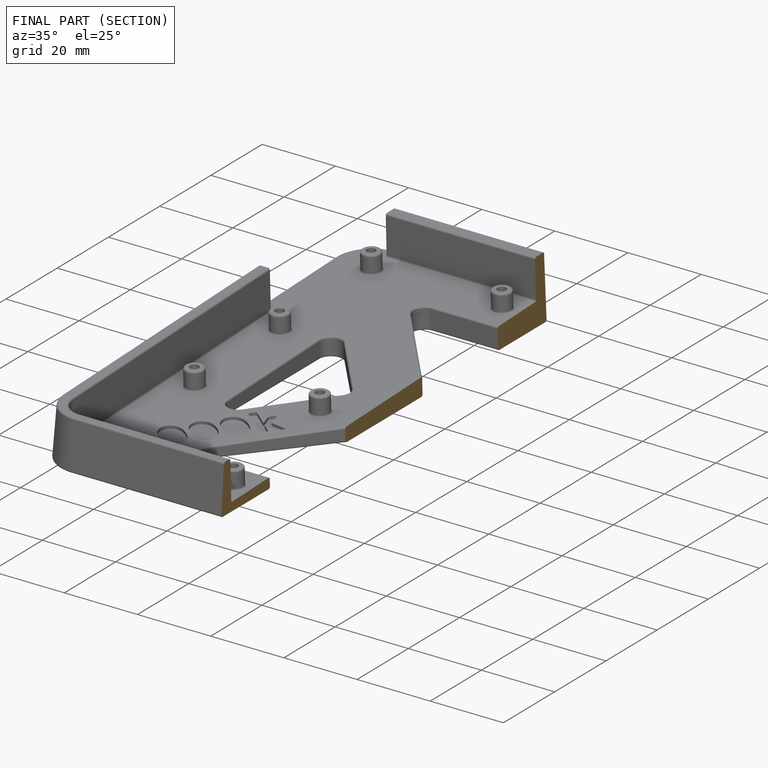
[diagram: finished part — half-section view (interior)]
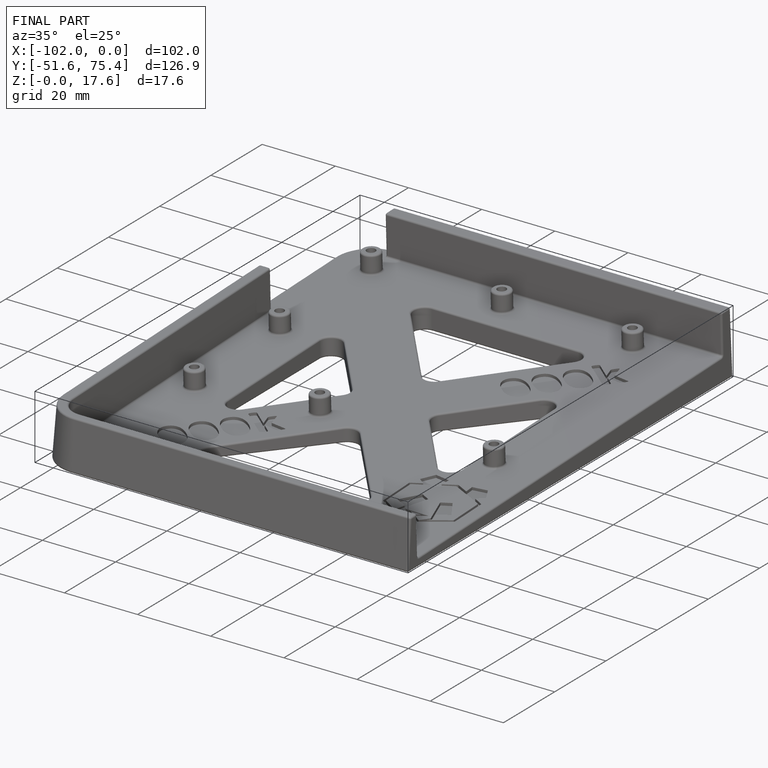
[diagram: finished part — iso view with bounding-box wireframe]
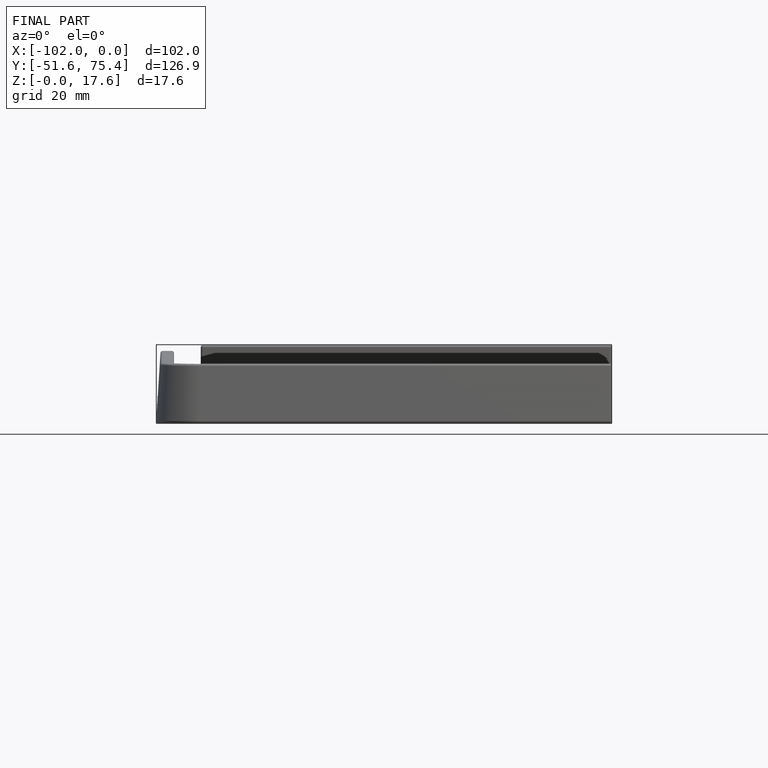
[diagram: finished part — front view with bounding-box wireframe]
